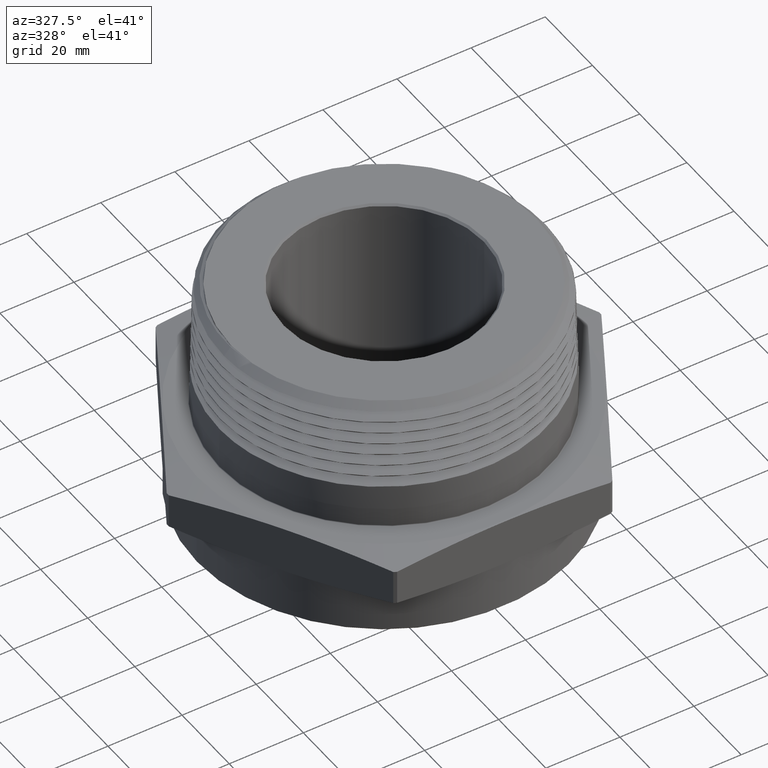
[diagram: clean part render]
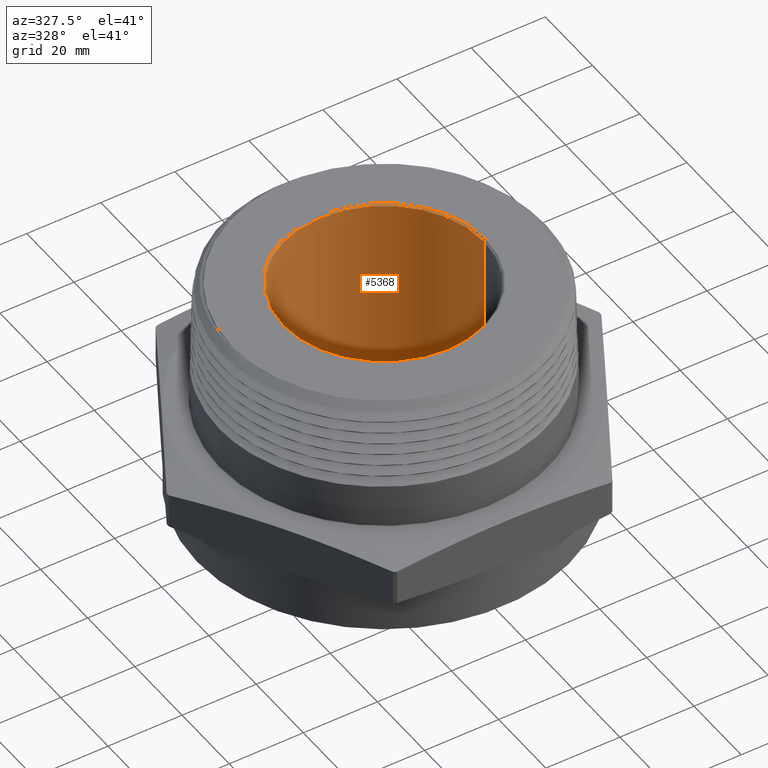
[diagram: same view with one face highlighted and labeled with its STEP entity id]
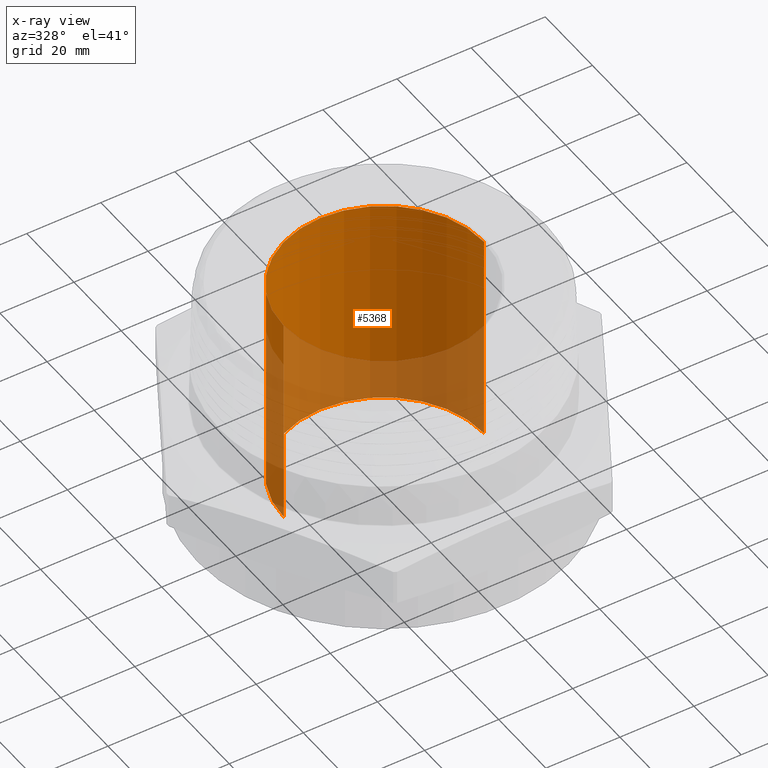
[diagram: x-ray of the same camera — body ghosted, the highlighted face saturated]
A machine part, auxiliary view. The second image highlights one B-rep face of the part: STEP entity #5368.
The next image is the same camera in x-ray: the body ghosted, the highlighted face saturated — about 33% of this face is hidden behind the body in this view.
In plain terms, the highlighted cylindrical surface (partial cylindrical patch) has radius 27.051 mm, axis along (0, 0, -1).
Its self-contained STEP definition (entity closure, byte-faithful):
#43 = FACE_OUTER_BOUND ( 'NONE', #3179, .T. ) ;
#52 = CYLINDRICAL_SURFACE ( 'NONE', #2974, 1.064999999999999500 ) ;
#149 = CIRCLE ( 'NONE', #964, 1.064999999999999500 ) ;
#150 = CIRCLE ( 'NONE', #965, 1.064999999999999500 ) ;
#526 = CARTESIAN_POINT ( 'NONE',  ( 1.064999999999999500, 1.304248841091930600E-016, 1.859999999999999700 ) ) ;
#533 = CARTESIAN_POINT ( 'NONE',  ( -1.064999999999999500, 0.0000000000000000000, -0.4150000000000000400 ) ) ;
#541 = CARTESIAN_POINT ( 'NONE',  ( 1.064999999999999500, 1.304248841091930600E-016, -0.4150000000000000400 ) ) ;
#646 = DIRECTION ( 'NONE',  ( 3.998174988426942000E-018, -0.0000000000000000000, -1.000000000000000000 ) ) ;
#648 = DIRECTION ( 'NONE',  ( -1.000000000000000000, 0.0000000000000000000, 0.0000000000000000000 ) ) ;
#650 = CARTESIAN_POINT ( 'NONE',  ( 7.347880794884104500E-018, 0.0000000000000000000, -0.5400000000000000400 ) ) ;
#800 = EDGE_CURVE ( 'NONE', #3054, #3058, #3102, .T. ) ;
#801 = EDGE_CURVE ( 'NONE', #7252, #3052, #3104, .T. ) ;
#964 = AXIS2_PLACEMENT_3D ( 'NONE', #6196, #6197, #6198 ) ;
#965 = AXIS2_PLACEMENT_3D ( 'NONE', #6201, #6202, #6203 ) ;
#2974 = AXIS2_PLACEMENT_3D ( 'NONE', #650, #646, #648 ) ;
#3002 = ORIENTED_EDGE ( 'NONE', *, *, #800, .F. ) ;
#3003 = ORIENTED_EDGE ( 'NONE', *, *, #8275, .F. ) ;
#3004 = ORIENTED_EDGE ( 'NONE', *, *, #801, .T. ) ;
#3005 = ORIENTED_EDGE ( 'NONE', *, *, #8276, .T. ) ;
#3052 = VERTEX_POINT ( 'NONE', #533 ) ;
#3054 = VERTEX_POINT ( 'NONE', #526 ) ;
#3058 = VERTEX_POINT ( 'NONE', #541 ) ;
#3102 = LINE ( 'NONE', #7869, #3105 ) ;
#3104 = LINE ( 'NONE', #7874, #3107 ) ;
#3105 = VECTOR ( 'NONE', #7873, 39.37007874015748100 ) ;
#3107 = VECTOR ( 'NONE', #7876, 39.37007874015748100 ) ;
#3179 = EDGE_LOOP ( 'NONE', ( #3002, #3003, #3004, #3005 ) ) ;
#5368 = ADVANCED_FACE ( 'NONE', ( #43 ), #52, .F. ) ;
#6007 = CARTESIAN_POINT ( 'NONE',  ( -1.064999999999999500, 0.0000000000000000000, 1.859999999999999700 ) ) ;
#6196 = CARTESIAN_POINT ( 'NONE',  ( -2.247739177340554700E-018, 0.0000000000000000000, 1.859999999999999700 ) ) ;
#6197 = DIRECTION ( 'NONE',  ( 3.998174988426942000E-018, -0.0000000000000000000, -1.000000000000000000 ) ) ;
#6198 = DIRECTION ( 'NONE',  ( -1.000000000000000000, 0.0000000000000000000, 0.0000000000000000000 ) ) ;
#6201 = CARTESIAN_POINT ( 'NONE',  ( 6.848108921330736100E-018, 0.0000000000000000000, -0.4150000000000000400 ) ) ;
#6202 = DIRECTION ( 'NONE',  ( 3.998174988426942000E-018, -0.0000000000000000000, -1.000000000000000000 ) ) ;
#6203 = DIRECTION ( 'NONE',  ( -1.000000000000000000, 0.0000000000000000000, 0.0000000000000000000 ) ) ;
#7252 = VERTEX_POINT ( 'NONE', #6007 ) ;
#7869 = CARTESIAN_POINT ( 'NONE',  ( 1.064999999999999500, 1.304248841091930600E-016, -0.5400000000000000400 ) ) ;
#7873 = DIRECTION ( 'NONE',  ( 3.998174988426942000E-018, -0.0000000000000000000, -1.000000000000000000 ) ) ;
#7874 = CARTESIAN_POINT ( 'NONE',  ( -1.064999999999999500, 0.0000000000000000000, -0.5400000000000000400 ) ) ;
#7876 = DIRECTION ( 'NONE',  ( 3.998174988426942000E-018, -0.0000000000000000000, -1.000000000000000000 ) ) ;
#8275 = EDGE_CURVE ( 'NONE', #7252, #3054, #149, .T. ) ;
#8276 = EDGE_CURVE ( 'NONE', #3052, #3058, #150, .T. ) ;